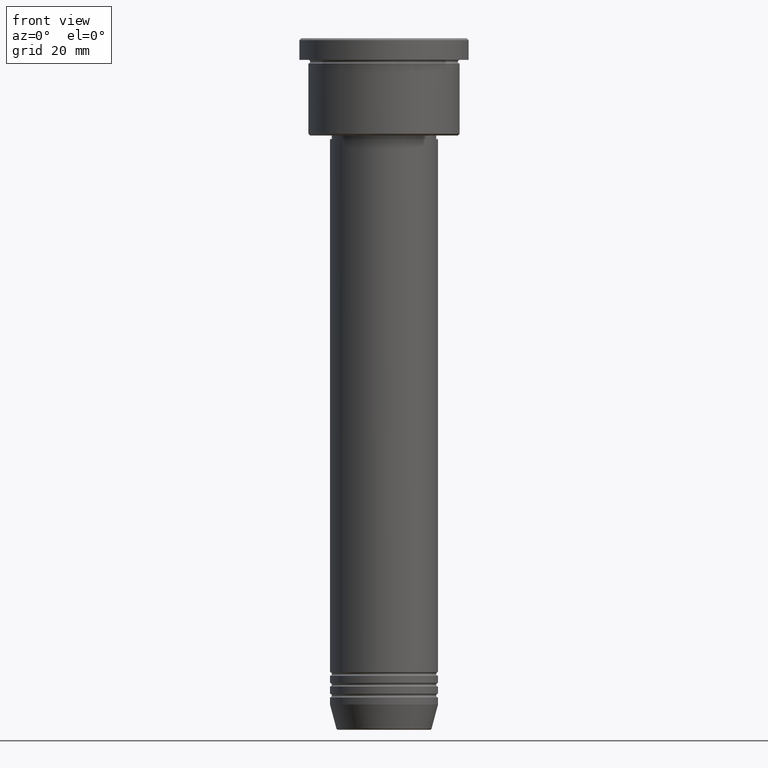
[diagram: clean part render]
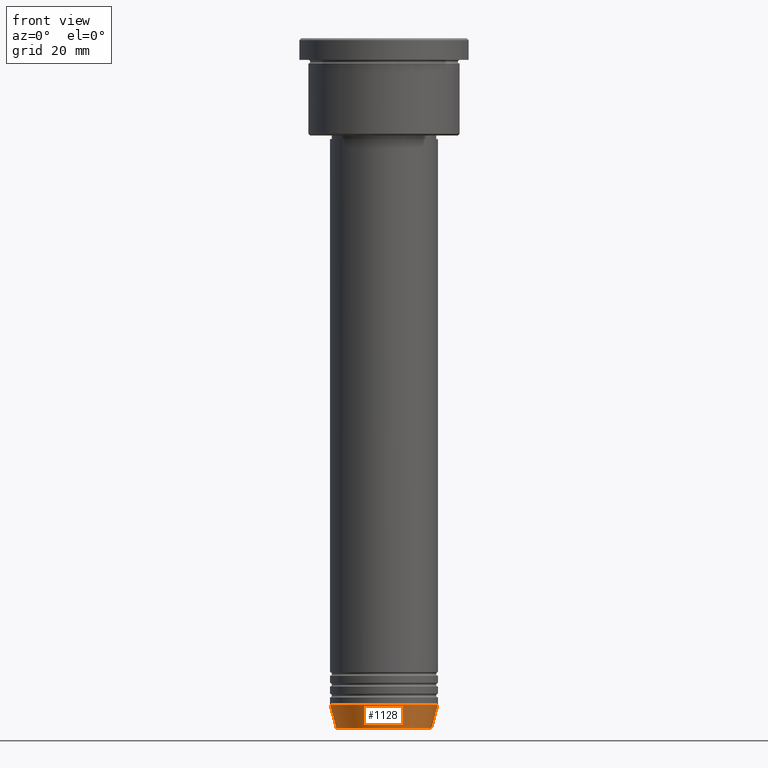
[diagram: same view with one face highlighted and labeled with its STEP entity id]
A machine part, front view. The second image highlights one B-rep face of the part: STEP entity #1128.
In plain terms, the highlighted conical surface has half-angle 15 deg.
Its self-contained STEP definition (entity closure, byte-faithful):
#17 = CARTESIAN_POINT ( 'NONE',  ( 0.000000000000000000, 0.000000000000000000, -191.6294095225512422 ) ) ;
#22 = CARTESIAN_POINT ( 'NONE',  ( 13.22365507213719305, 0.000000000000000000, -191.6294095225512422 ) ) ;
#35 = VERTEX_POINT ( 'NONE', #400 ) ;
#76 = EDGE_LOOP ( 'NONE', ( #1065, #548, #806, #984 ) ) ;
#120 = EDGE_CURVE ( 'NONE', #722, #35, #493, .T. ) ;
#128 = DIRECTION ( 'NONE',  ( -0.000000000000000000, -0.000000000000000000, 1.000000000000000000 ) ) ;
#149 = CARTESIAN_POINT ( 'NONE',  ( -15.00000000000000000, 1.836970198721029589E-15, -185.0000000000000284 ) ) ;
#162 = CONICAL_SURFACE ( 'NONE', #1150, 15.00000000000000000, 0.2617993877991500740 ) ;
#257 = VERTEX_POINT ( 'NONE', #709 ) ;
#315 = AXIS2_PLACEMENT_3D ( 'NONE', #17, #488, #392 ) ;
#339 = EDGE_CURVE ( 'NONE', #35, #257, #962, .T. ) ;
#351 = VECTOR ( 'NONE', #491, 1000.000000000000000 ) ;
#356 = VECTOR ( 'NONE', #940, 1000.000000000000000 ) ;
#386 = LINE ( 'NONE', #1026, #351 ) ;
#392 = DIRECTION ( 'NONE',  ( 1.000000000000000000, 0.000000000000000000, 0.000000000000000000 ) ) ;
#400 = CARTESIAN_POINT ( 'NONE',  ( -15.00000000000000000, 1.836970198721029589E-15, -185.0000000000000284 ) ) ;
#429 = EDGE_CURVE ( 'NONE', #722, #891, #467, .T. ) ;
#441 = CARTESIAN_POINT ( 'NONE',  ( -13.22365507213719305, 1.728200442216588583E-15, -191.6294095225512422 ) ) ;
#461 = DIRECTION ( 'NONE',  ( 1.000000000000000000, 0.000000000000000000, 0.000000000000000000 ) ) ;
#467 = CIRCLE ( 'NONE', #315, 13.22365507213719305 ) ;
#482 = EDGE_CURVE ( 'NONE', #891, #257, #386, .T. ) ;
#484 = AXIS2_PLACEMENT_3D ( 'NONE', #803, #729, #461 ) ;
#488 = DIRECTION ( 'NONE',  ( -0.000000000000000000, -0.000000000000000000, 1.000000000000000000 ) ) ;
#491 = DIRECTION ( 'NONE',  ( 0.2588190451025213501, 0.000000000000000000, 0.9659258262890680902 ) ) ;
#493 = LINE ( 'NONE', #149, #356 ) ;
#548 = ORIENTED_EDGE ( 'NONE', *, *, #429, .T. ) ;
#687 = FACE_OUTER_BOUND ( 'NONE', #76, .T. ) ;
#709 = CARTESIAN_POINT ( 'NONE',  ( 15.00000000000000000, 0.000000000000000000, -185.0000000000000284 ) ) ;
#722 = VERTEX_POINT ( 'NONE', #441 ) ;
#729 = DIRECTION ( 'NONE',  ( -0.000000000000000000, -0.000000000000000000, 1.000000000000000000 ) ) ;
#803 = CARTESIAN_POINT ( 'NONE',  ( 0.000000000000000000, 0.000000000000000000, -185.0000000000000284 ) ) ;
#806 = ORIENTED_EDGE ( 'NONE', *, *, #482, .T. ) ;
#891 = VERTEX_POINT ( 'NONE', #22 ) ;
#940 = DIRECTION ( 'NONE',  ( -0.2588190451025213501, 3.169619151431772337E-17, 0.9659258262890680902 ) ) ;
#962 = CIRCLE ( 'NONE', #484, 15.00000000000000000 ) ;
#984 = ORIENTED_EDGE ( 'NONE', *, *, #339, .F. ) ;
#1024 = DIRECTION ( 'NONE',  ( 1.000000000000000000, 0.000000000000000000, 0.000000000000000000 ) ) ;
#1026 = CARTESIAN_POINT ( 'NONE',  ( 15.00000000000000000, 0.000000000000000000, -185.0000000000000284 ) ) ;
#1045 = CARTESIAN_POINT ( 'NONE',  ( 0.000000000000000000, 0.000000000000000000, -185.0000000000000284 ) ) ;
#1065 = ORIENTED_EDGE ( 'NONE', *, *, #120, .F. ) ;
#1128 = ADVANCED_FACE ( 'NONE', ( #687 ), #162, .T. ) ;
#1150 = AXIS2_PLACEMENT_3D ( 'NONE', #1045, #128, #1024 ) ;